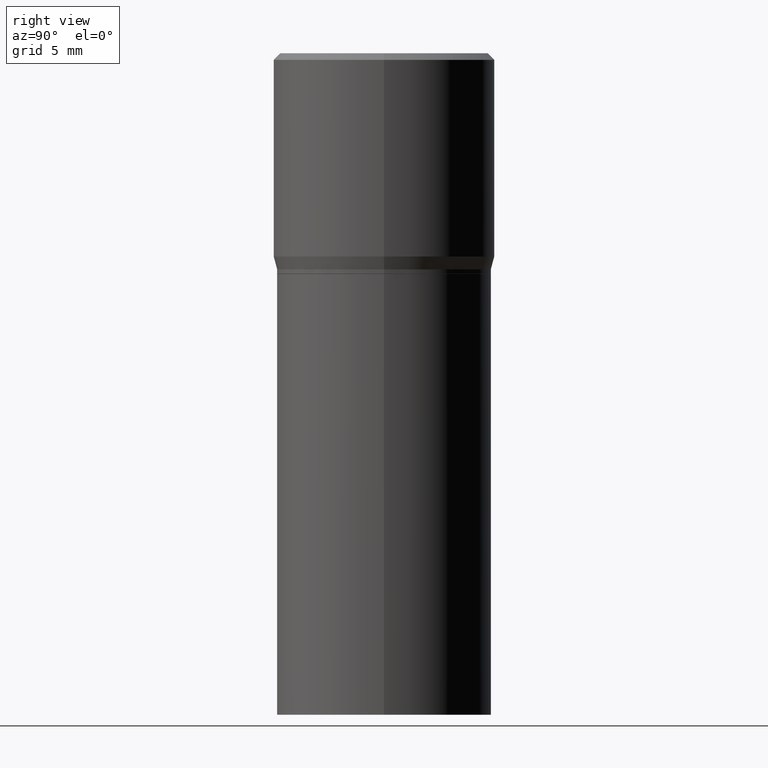
[diagram: clean part render]
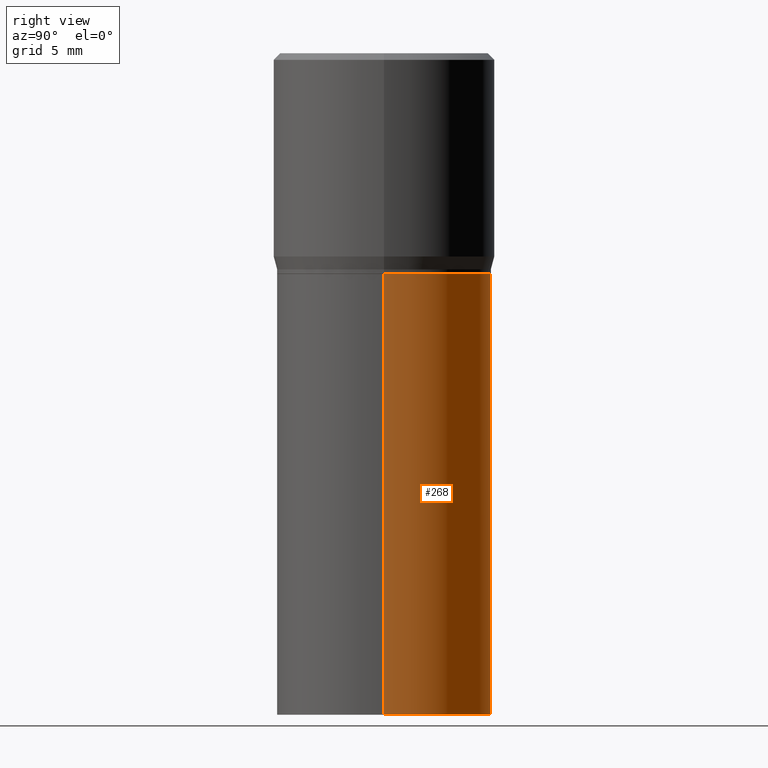
[diagram: same view with one face highlighted and labeled with its STEP entity id]
A machine part, right view. The second image highlights one B-rep face of the part: STEP entity #268.
In plain terms, the highlighted cylindrical surface (partial cylindrical patch) has radius 6.1519 mm, axis along (-0, 0, 1).
Its self-contained STEP definition (entity closure, byte-faithful):
#2 = VERTEX_POINT ( 'NONE', #107 ) ;
#18 = VECTOR ( 'NONE', #117, 39.37007874015748143 ) ;
#19 = CYLINDRICAL_SURFACE ( 'NONE', #265, 0.2422000000000000264 ) ;
#29 = LINE ( 'NONE', #422, #116 ) ;
#45 = EDGE_LOOP ( 'NONE', ( #313, #211, #136, #283 ) ) ;
#84 = CARTESIAN_POINT ( 'NONE',  ( -0.2422000000000000264, -1.770546832832183337E-15, -0.5000000000000001110 ) ) ;
#98 = AXIS2_PLACEMENT_3D ( 'NONE', #167, #308, #209 ) ;
#101 = DIRECTION ( 'NONE',  ( -2.445468806185136597E-29, 3.491481338843145583E-15, 1.000000000000000000 ) ) ;
#107 = CARTESIAN_POINT ( 'NONE',  ( -0.2422000000000000264, -1.770546832832183337E-15, -1.500000000000000222 ) ) ;
#114 = CARTESIAN_POINT ( 'NONE',  ( 0.2422000000000000264, -6.928495568800332365E-15, -1.500000000000000222 ) ) ;
#116 = VECTOR ( 'NONE', #210, 39.37007874015748143 ) ;
#117 = DIRECTION ( 'NONE',  ( -2.445468806185136877E-29, 3.491481338843145188E-15, 1.000000000000000000 ) ) ;
#121 = LINE ( 'NONE', #160, #18 ) ;
#136 = ORIENTED_EDGE ( 'NONE', *, *, #165, .F. ) ;
#160 = CARTESIAN_POINT ( 'NONE',  ( 0.2422000000000000264, -1.691273560535613991E-15, 1.181010015097775692E-29 ) ) ;
#165 = EDGE_CURVE ( 'NONE', #218, #202, #309, .T. ) ;
#167 = CARTESIAN_POINT ( 'NONE',  ( 3.668203209277704895E-29, -5.237222008264718177E-15, -1.500000000000000222 ) ) ;
#193 = CARTESIAN_POINT ( 'NONE',  ( 0.000000000000000000, 0.000000000000000000, 0.000000000000000000 ) ) ;
#202 = VERTEX_POINT ( 'NONE', #84 ) ;
#209 = DIRECTION ( 'NONE',  ( 1.000000000000000000, -6.982962677686265922E-15, 0.000000000000000000 ) ) ;
#210 = DIRECTION ( 'NONE',  ( -2.445468806185136877E-29, 3.491481338843145188E-15, 1.000000000000000000 ) ) ;
#211 = ORIENTED_EDGE ( 'NONE', *, *, #437, .T. ) ;
#213 = EDGE_CURVE ( 'NONE', #220, #218, #121, .T. ) ;
#218 = VERTEX_POINT ( 'NONE', #407 ) ;
#220 = VERTEX_POINT ( 'NONE', #114 ) ;
#225 = DIRECTION ( 'NONE',  ( 1.000000000000000000, -6.982962677686266711E-15, 4.876176775795935232E-29 ) ) ;
#265 = AXIS2_PLACEMENT_3D ( 'NONE', #193, #444, #225 ) ;
#268 = ADVANCED_FACE ( 'NONE', ( #331 ), #19, .T. ) ;
#283 = ORIENTED_EDGE ( 'NONE', *, *, #213, .F. ) ;
#308 = DIRECTION ( 'NONE',  ( -2.445468806185136597E-29, 3.491481338843145583E-15, 1.000000000000000000 ) ) ;
#309 = CIRCLE ( 'NONE', #445, 0.2422000000000000264 ) ;
#313 = ORIENTED_EDGE ( 'NONE', *, *, #442, .T. ) ;
#331 = FACE_OUTER_BOUND ( 'NONE', #45, .T. ) ;
#356 = DIRECTION ( 'NONE',  ( 1.000000000000000000, -6.982962677686266711E-15, 0.000000000000000000 ) ) ;
#376 = CIRCLE ( 'NONE', #98, 0.2422000000000000264 ) ;
#407 = CARTESIAN_POINT ( 'NONE',  ( 0.2422000000000000264, -3.437014229957187177E-15, -0.5000000000000001110 ) ) ;
#422 = CARTESIAN_POINT ( 'NONE',  ( -0.2422000000000000264, 1.720934506010962838E-15, -1.191366078859738205E-29 ) ) ;
#428 = CARTESIAN_POINT ( 'NONE',  ( 1.222734403092568719E-29, -1.745740669421573186E-15, -0.5000000000000001110 ) ) ;
#437 = EDGE_CURVE ( 'NONE', #2, #202, #29, .T. ) ;
#442 = EDGE_CURVE ( 'NONE', #220, #2, #376, .T. ) ;
#444 = DIRECTION ( 'NONE',  ( -2.445468806185136597E-29, 3.491481338843145583E-15, 1.000000000000000000 ) ) ;
#445 = AXIS2_PLACEMENT_3D ( 'NONE', #428, #101, #356 ) ;